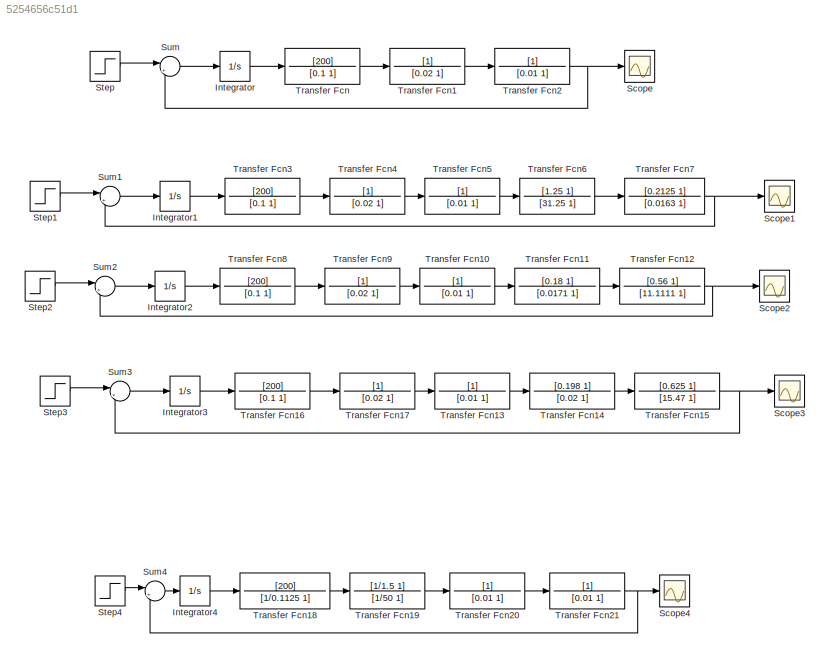
MODEL slx_5254656c51d1
KIND model
CONFIG AbsTol = auto
CONFIG EnableMultiTasking = off
CONFIG FixedStep = auto
CONFIG MaxStep = auto
CONFIG MinStep = auto
CONFIG RelTol = 1e-3
CONFIG SampleTimeConstraint = Unconstrained
CONFIG SolverName = VariableStepAuto
CONFIG StartTime = 0.0
CONFIG StopTime = 10.0
BLOCK [Integrator] Integrator
BLOCK [Integrator] Integrator1
BLOCK [Integrator] Integrator2
BLOCK [Integrator] Integrator3
BLOCK [Integrator] Integrator4
BLOCK [Scope] Scope
  ActiveDisplayYMaximum = 2.8129634199365712E+35
  ActiveDisplayYMinimum = -5.5056481049455675E+35
  Floating = off
  GraphicalSettings = {"GraphicalSettings":{"LegacySettings":true,"Style":{"Style":{"AxesColor":"[1 1 1]","BackgroundColor":"[1 1 1]","ChannelNames":[""],"ColorOrder":"[0.0666666666666667 0.443137254901961 0.745098039215686;0.866666666666667 0.329411764705882 0;0.929411764705882 0.694117647058824 0.125490196078431;0.52156862745098 0.0862745098039216 0.819607843137255;0.231372549019608 0.666666666666667 0.19607843137254...<+483ch>
  MultipleDisplayCache = [{"MaxYLimMag":5.5056481049455675E+35,"MaxYLimReal":2.8129634199365712E+35,"MinYLimMag":0,"MinYLimReal":-5.5056481049455675E+35,"PlotAsMagnitudePhase":false,"ShowGrid":true,"ShowLegend":false,"Title":"%<SignalLabel>","YLabel":""}]
  NumInputPorts = 1
  WasSavedAsWebScope = on
BLOCK [Scope] Scope1
  ActiveDisplayYMaximum = 1.17771
  ActiveDisplayYMinimum = -0.13086
  DataLoggingVariableName = ScopeData1
  Floating = off
  GraphicalSettings = {"GraphicalSettings":{"LegacySettings":true,"Style":{"Cursors":{"CursorChannels":"[1 1]","Enabled":"true","Horizontal":"false","LinkToWaveform":"true","LockSpacing":"false","SnapToData":"false","XLocation":"[1.33298755186723 1.91390041493777]","YLocation":"[0.954539502072925 1.04652108179493]"},"Style":{"AxesColor":"[1 1 1]","BackgroundColor":"[1 1 1]","ChannelNames":[""],"ColorOrder":"[0.06666666...<+836ch>
  MultipleDisplayCache = [{"MaxYLimMag":1.17771,"MaxYLimReal":1.17771,"MinYLimMag":0,"MinYLimReal":-0.13086,"PlotAsMagnitudePhase":false,"ShowGrid":true,"ShowLegend":false,"Title":"%<SignalLabel>","YLabel":""}]
  NumInputPorts = 1
  WasSavedAsWebScope = on
BLOCK [Scope] Scope2
  ActiveDisplayYMaximum = 1.26271
  ActiveDisplayYMinimum = -0.1403
  DataLoggingVariableName = ScopeData2
  Floating = off
  GraphicalSettings = {"GraphicalSettings":{"LegacySettings":true,"Style":{"Cursors":{"CursorChannels":"[1 1]","Enabled":"true","Horizontal":"false","LinkToWaveform":"true","LockSpacing":"false","SnapToData":"false","XLocation":"[1.17738589211619 1.85165975103735]","YLocation":"[1.1219993501429 1.0504249845479]"},"Style":{"AxesColor":"[1 1 1]","BackgroundColor":"[1 1 1]","ChannelNames":[""],"ColorOrder":"[0.06666666666...<+833ch>
  MultipleDisplayCache = [{"MaxYLimMag":1.26271,"MaxYLimReal":1.26271,"MinYLimMag":0,"MinYLimReal":-0.1403,"PlotAsMagnitudePhase":false,"ShowGrid":true,"ShowLegend":false,"Title":"%<SignalLabel>","YLabel":""}]
  NumInputPorts = 1
  WasSavedAsWebScope = on
BLOCK [Scope] Scope3
  ActiveDisplayYMaximum = 1.2048
  ActiveDisplayYMinimum = -0.13387
  DataLoggingVariableName = ScopeData3
  Floating = off
  GraphicalSettings = {"GraphicalSettings":{"LegacySettings":true,"Style":{"Cursors":{"CursorChannels":"[1 1]","Enabled":"true","Horizontal":"false","LinkToWaveform":"true","LockSpacing":"false","SnapToData":"false","XLocation":"[1.57157676348548 2.09024896265561]","YLocation":"[1.06934920523121 1.04973242802629]"},"Style":{"AxesColor":"[1 1 1]","BackgroundColor":"[1 1 1]","ChannelNames":[""],"ColorOrder":"[0.066666666...<+835ch>
  MultipleDisplayCache = [{"MaxYLimMag":1.2048,"MaxYLimReal":1.2048,"MinYLimMag":0,"MinYLimReal":-0.13387,"PlotAsMagnitudePhase":false,"ShowGrid":true,"ShowLegend":false,"Title":"%<SignalLabel>","YLabel":""}]
  NumInputPorts = 1
  WasSavedAsWebScope = on
BLOCK [Scope] Scope4
  ActiveDisplayYMaximum = 1.34031
  ActiveDisplayYMinimum = -0.14892
  DataLoggingVariableName = ScopeData4
  Floating = off
  GraphicalSettings = {"GraphicalSettings":{"LegacySettings":true,"Style":{"Cursors":{"CursorChannels":"[1 1]","Enabled":"true","Horizontal":"false","LinkToWaveform":"true","LockSpacing":"false","SnapToData":"false","XLocation":"[1.19078947368422 1.53289473684211]","YLocation":"[1.18889115010021 1.0503417689017]"},"Style":{"AxesColor":"[1 1 1]","BackgroundColor":"[1 1 1]","ChannelNames":[""],"ColorOrder":"[0.0666666666...<+821ch>
  MultipleDisplayCache = [{"MaxYLimMag":1.34031,"MaxYLimReal":1.34031,"MinYLimMag":0,"MinYLimReal":-0.14892,"PlotAsMagnitudePhase":false,"ShowGrid":true,"ShowLegend":false,"Title":"%<SignalLabel>","YLabel":""}]
  NumInputPorts = 1
  WasSavedAsWebScope = on
BLOCK [Step] Step
  SampleTime = 0
BLOCK [Step] Step1
  SampleTime = 0
BLOCK [Step] Step2
  SampleTime = 0
BLOCK [Step] Step3
  SampleTime = 0
BLOCK [Step] Step4
  SampleTime = 0
BLOCK [Sum] Sum
  Inputs = |+-
BLOCK [Sum] Sum1
  Inputs = |+-
BLOCK [Sum] Sum2
  Inputs = |+-
BLOCK [Sum] Sum3
  Inputs = |+-
BLOCK [Sum] Sum4
  Inputs = |+-
BLOCK [TransferFcn] Transfer Fcn
  Denominator = [0.1 1]
  Numerator = [200]
BLOCK [TransferFcn] Transfer Fcn1
  Denominator = [0.02 1]
BLOCK [TransferFcn] Transfer Fcn10
  Denominator = [0.01 1]
BLOCK [TransferFcn] Transfer Fcn11
  Denominator = [0.0171 1]
  Numerator = [0.18 1]
BLOCK [TransferFcn] Transfer Fcn12
  Denominator = [11.1111 1]
  Numerator = [0.56 1]
BLOCK [TransferFcn] Transfer Fcn13
  Denominator = [0.01 1]
BLOCK [TransferFcn] Transfer Fcn14
  Denominator = [0.02 1]
  Numerator = [0.198 1]
BLOCK [TransferFcn] Transfer Fcn15
  Denominator = [15.47 1]
  Numerator = [0.625 1]
BLOCK [TransferFcn] Transfer Fcn16
  Denominator = [0.1 1]
  Numerator = [200]
BLOCK [TransferFcn] Transfer Fcn17
  Denominator = [0.02 1]
BLOCK [TransferFcn] Transfer Fcn18
  Denominator = [1/0.1125 1]
  Numerator = [200]
BLOCK [TransferFcn] Transfer Fcn19
  Denominator = [1/50 1]
  Numerator = [1/1.5 1]
BLOCK [TransferFcn] Transfer Fcn2
  Denominator = [0.01 1]
BLOCK [TransferFcn] Transfer Fcn20
  Denominator = [0.01 1]
BLOCK [TransferFcn] Transfer Fcn21
  Denominator = [0.01 1]
BLOCK [TransferFcn] Transfer Fcn3
  Denominator = [0.1 1]
  Numerator = [200]
BLOCK [TransferFcn] Transfer Fcn4
  Denominator = [0.02 1]
BLOCK [TransferFcn] Transfer Fcn5
  Denominator = [0.01 1]
BLOCK [TransferFcn] Transfer Fcn6
  Denominator = [31.25 1]
  Numerator = [1.25 1]
BLOCK [TransferFcn] Transfer Fcn7
  Denominator = [0.0163 1]
  Numerator = [0.2125 1]
BLOCK [TransferFcn] Transfer Fcn8
  Denominator = [0.1 1]
  Numerator = [200]
BLOCK [TransferFcn] Transfer Fcn9
  Denominator = [0.02 1]
LINE Integrator1:1 -> Transfer Fcn3:1
LINE Integrator2:1 -> Transfer Fcn8:1
LINE Integrator3:1 -> Transfer Fcn16:1
LINE Integrator4:1 -> Transfer Fcn18:1
LINE Integrator:1 -> Transfer Fcn:1
LINE Step1:1 -> Sum1:1
LINE Step2:1 -> Sum2:1
LINE Step3:1 -> Sum3:1
LINE Step4:1 -> Sum4:1
LINE Step:1 -> Sum:1
LINE Sum1:1 -> Integrator1:1
LINE Sum2:1 -> Integrator2:1
LINE Sum3:1 -> Integrator3:1
LINE Sum4:1 -> Integrator4:1
LINE Sum:1 -> Integrator:1
LINE Transfer Fcn10:1 -> Transfer Fcn11:1
LINE Transfer Fcn11:1 -> Transfer Fcn12:1
NET Transfer Fcn12:1 -> Scope2:1, Sum2:2
LINE Transfer Fcn13:1 -> Transfer Fcn14:1
LINE Transfer Fcn14:1 -> Transfer Fcn15:1
NET Transfer Fcn15:1 -> Scope3:1, Sum3:2
LINE Transfer Fcn16:1 -> Transfer Fcn17:1
LINE Transfer Fcn17:1 -> Transfer Fcn13:1
LINE Transfer Fcn18:1 -> Transfer Fcn19:1
LINE Transfer Fcn19:1 -> Transfer Fcn20:1
LINE Transfer Fcn1:1 -> Transfer Fcn2:1
LINE Transfer Fcn20:1 -> Transfer Fcn21:1
NET Transfer Fcn21:1 -> Scope4:1, Sum4:2
NET Transfer Fcn2:1 -> Scope:1, Sum:2
LINE Transfer Fcn3:1 -> Transfer Fcn4:1
LINE Transfer Fcn4:1 -> Transfer Fcn5:1
LINE Transfer Fcn5:1 -> Transfer Fcn6:1
LINE Transfer Fcn6:1 -> Transfer Fcn7:1
NET Transfer Fcn7:1 -> Scope1:1, Sum1:2
LINE Transfer Fcn8:1 -> Transfer Fcn9:1
LINE Transfer Fcn9:1 -> Transfer Fcn10:1
LINE Transfer Fcn:1 -> Transfer Fcn1:1
note: NET lines group one-source signal fan-out (src -> all destinations, sorted); 1:1 wires keep LINE
